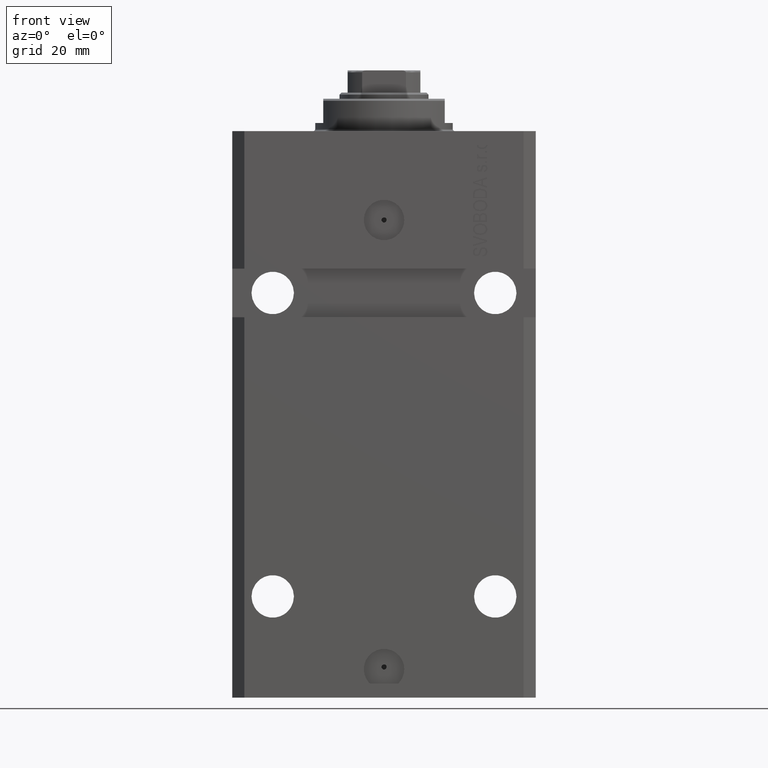
[diagram: clean part render]
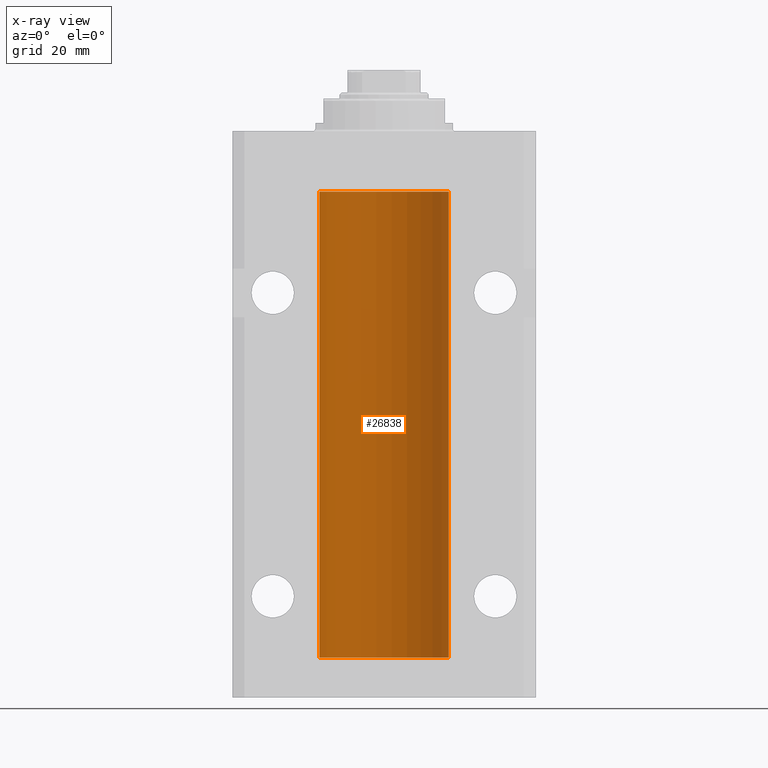
[diagram: x-ray — body ghosted, one internal face saturated and labeled with its STEP entity id]
A machine part, front view, then the same camera in x-ray: the body is ghosted and one INTERNAL B-rep face — a face not visible from any outside direction — is saturated and labeled: STEP entity #26838.
In plain terms, the highlighted cylindrical surface (partial cylindrical patch) has radius 16 mm, axis along (0, 0, 1).
Its self-contained STEP definition (entity closure, byte-faithful):
#919 = CARTESIAN_POINT ( 'NONE',  ( 16.00000000000000355, 0.08261762387943334673, -128.6250000000000000 ) ) ;
#1104 = EDGE_LOOP ( 'NONE', ( #15509, #25297, #29927, #26818, #11495, #1739, #27128, #18544, #9976, #4559 ) ) ;
#1739 = ORIENTED_EDGE ( 'NONE', *, *, #7526, .T. ) ;
#1904 = VERTEX_POINT ( 'NONE', #9863 ) ;
#2491 = VERTEX_POINT ( 'NONE', #39573 ) ;
#3247 = CARTESIAN_POINT ( 'NONE',  ( 15.98778830858104172, 0.6249999999996183053, -21.91847885046212951 ) ) ;
#4559 = ORIENTED_EDGE ( 'NONE', *, *, #31429, .T. ) ;
#6688 = CARTESIAN_POINT ( 'NONE',  ( 15.99707608081895494, 0.3151028052309814975, -22.54594170697728117 ) ) ;
#6913 = DIRECTION ( 'NONE',  ( 1.000000000000000000, 0.000000000000000000, 0.000000000000000000 ) ) ;
#7072 = VECTOR ( 'NONE', #34855, 1000.000000000000000 ) ;
#7145 = CARTESIAN_POINT ( 'NONE',  ( 16.00000000000000000, -7.378931128587136680E-16, -22.62500000000000000 ) ) ;
#7178 = LINE ( 'NONE', #7618, #9834 ) ;
#7295 = CARTESIAN_POINT ( 'NONE',  ( 15.98844460043492077, 0.6087869699337552509, -127.8365745496755608 ) ) ;
#7526 = EDGE_CURVE ( 'NONE', #21789, #40784, #7178, .T. ) ;
#7584 = CARTESIAN_POINT ( 'NONE',  ( 15.99070366873610638, 0.5574063959866681905, -22.32639436837549596 ) ) ;
#7618 = CARTESIAN_POINT ( 'NONE',  ( 16.00000000000000000, 0.000000000000000000, -130.0999999999999943 ) ) ;
#7623 = CARTESIAN_POINT ( 'NONE',  ( -16.00000000000000000, 1.959434878635765131E-15, -130.0999999999999943 ) ) ;
#7895 = CARTESIAN_POINT ( 'NONE',  ( 15.99707608081894783, 0.3151028052310348992, -128.5459417069773451 ) ) ;
#8246 = EDGE_CURVE ( 'NONE', #34758, #41691, #24337, .T. ) ;
#9547 = VERTEX_POINT ( 'NONE', #14457 ) ;
#9834 = VECTOR ( 'NONE', #38112, 1000.000000000000000 ) ;
#9863 = CARTESIAN_POINT ( 'NONE',  ( 16.00000000000013145, 3.665532680419208314E-13, -21.37499999999658229 ) ) ;
#9976 = ORIENTED_EDGE ( 'NONE', *, *, #14908, .T. ) ;
#10114 = DIRECTION ( 'NONE',  ( -0.000000000000000000, -0.000000000000000000, 1.000000000000000000 ) ) ;
#10239 = CARTESIAN_POINT ( 'NONE',  ( 15.99228275317787151, 0.5002975944204681724, -127.6164201457017668 ) ) ;
#10990 = CARTESIAN_POINT ( 'NONE',  ( 16.00000000000000000, 0.08261762387942135633, -22.62499999999996803 ) ) ;
#11495 = ORIENTED_EDGE ( 'NONE', *, *, #28149, .T. ) ;
#11834 = DIRECTION ( 'NONE',  ( 1.000000000000000000, 0.000000000000000000, 0.000000000000000000 ) ) ;
#12471 = CARTESIAN_POINT ( 'NONE',  ( 16.00000000000000000, 0.000000000000000000, -130.0999999999999943 ) ) ;
#13091 = CARTESIAN_POINT ( 'NONE',  ( 15.98778830858070954, 0.6250000000080528917, -127.9999999999991473 ) ) ;
#14321 = CARTESIAN_POINT ( 'NONE',  ( 15.98778830858070954, 0.6250000000079481977, -21.99999999999914735 ) ) ;
#14408 = DIRECTION ( 'NONE',  ( 1.000000000000000000, 0.000000000000000000, 0.000000000000000000 ) ) ;
#14457 = CARTESIAN_POINT ( 'NONE',  ( 16.00000000000000000, 0.000000000000000000, -15.00000000000000000 ) ) ;
#14908 = EDGE_CURVE ( 'NONE', #1904, #9547, #34054, .T. ) ;
#15509 = ORIENTED_EDGE ( 'NONE', *, *, #8246, .F. ) ;
#16508 = VERTEX_POINT ( 'NONE', #20115 ) ;
#17021 = CARTESIAN_POINT ( 'NONE',  ( 15.98844460043492077, 0.6087869699336542206, -21.83657454967558564 ) ) ;
#17343 = CARTESIAN_POINT ( 'NONE',  ( 0.000000000000000000, 0.000000000000000000, -130.0999999999999943 ) ) ;
#17483 = LINE ( 'NONE', #38239, #7072 ) ;
#17648 = VERTEX_POINT ( 'NONE', #30959 ) ;
#17921 = CARTESIAN_POINT ( 'NONE',  ( 16.00000000000013145, 3.665532680419208314E-13, -21.37499999999658229 ) ) ;
#18544 = ORIENTED_EDGE ( 'NONE', *, *, #35410, .T. ) ;
#20115 = CARTESIAN_POINT ( 'NONE',  ( 16.00000000000000000, 2.199125140786256469E-15, -128.6250000000000284 ) ) ;
#20457 = CARTESIAN_POINT ( 'NONE',  ( 15.99548458234361803, 0.3844468804815583396, -22.49947786696350960 ) ) ;
#21007 = CARTESIAN_POINT ( 'NONE',  ( 16.00000000000013145, 3.665533114689029904E-13, -127.3749999999965752 ) ) ;
#21014 = CARTESIAN_POINT ( 'NONE',  ( -16.00000000000000000, 1.959434878635765131E-15, -15.00000000000000000 ) ) ;
#21071 = CARTESIAN_POINT ( 'NONE',  ( 15.99999999999998934, 0.1631343969470183675, -127.3750000000001847 ) ) ;
#21359 = CARTESIAN_POINT ( 'NONE',  ( 15.98778830858101152, 0.6250000000001202372, -22.16311639173018477 ) ) ;
#21539 = DIRECTION ( 'NONE',  ( 0.000000000000000000, 0.000000000000000000, 1.000000000000000000 ) ) ;
#21668 = CARTESIAN_POINT ( 'NONE',  ( 15.99070366873610993, 0.5574063959867617823, -128.3263943683755315 ) ) ;
#21789 = VERTEX_POINT ( 'NONE', #21007 ) ;
#24009 = CARTESIAN_POINT ( 'NONE',  ( 15.99711856062700122, 0.3252985083513916242, -21.44140297987714661 ) ) ;
#24070 = CARTESIAN_POINT ( 'NONE',  ( 0.000000000000000000, 0.000000000000000000, -130.0999999999999943 ) ) ;
#24337 = LINE ( 'NONE', #7623, #27877 ) ;
#24968 = CARTESIAN_POINT ( 'NONE',  ( 16.00000000000000000, 0.000000000000000000, -130.0999999999999943 ) ) ;
#25120 = B_SPLINE_CURVE_WITH_KNOTS ( 'NONE', 3,
 ( #40931, #31217, #7295, #33951, #10239, #41607, #21071, #34841 ),
 .UNSPECIFIED., .F., .F.,
 ( 4, 2, 2, 4 ),
 ( 0.0009773326288700927462, 0.001221554802188709252, 0.001465776975507325757, 0.001954221322144558768 ),
 .UNSPECIFIED. ) ;
#25297 = ORIENTED_EDGE ( 'NONE', *, *, #38937, .F. ) ;
#25893 = CIRCLE ( 'NONE', #43915, 16.00000000000000000 ) ;
#26818 = ORIENTED_EDGE ( 'NONE', *, *, #36534, .T. ) ;
#26838 = ADVANCED_FACE ( 'NONE', ( #34261 ), #38103, .F. ) ;
#27128 = ORIENTED_EDGE ( 'NONE', *, *, #29920, .T. ) ;
#27238 = CARTESIAN_POINT ( 'NONE',  ( 15.99934183755191341, 0.1636877470526788836, -22.60872690654067796 ) ) ;
#27877 = VECTOR ( 'NONE', #28606, 1000.000000000000000 ) ;
#28149 = EDGE_CURVE ( 'NONE', #2491, #21789, #25120, .T. ) ;
#28425 = CARTESIAN_POINT ( 'NONE',  ( 15.99934183755190986, 0.1636877470527098033, -128.6087269065407384 ) ) ;
#28606 = DIRECTION ( 'NONE',  ( -0.000000000000000000, -0.000000000000000000, 1.000000000000000000 ) ) ;
#29500 = EDGE_CURVE ( 'NONE', #43968, #16508, #17483, .T. ) ;
#29585 = AXIS2_PLACEMENT_3D ( 'NONE', #24070, #31075, #6913 ) ;
#29920 = EDGE_CURVE ( 'NONE', #40784, #17648, #32545, .T. ) ;
#29927 = ORIENTED_EDGE ( 'NONE', *, *, #29500, .T. ) ;
#30780 = CARTESIAN_POINT ( 'NONE',  ( 15.99070695999104252, 0.5461439696926362330, -21.68526802364053552 ) ) ;
#30959 = CARTESIAN_POINT ( 'NONE',  ( 15.98778830858070954, 0.6250000000079481977, -21.99999999999914735 ) ) ;
#31075 = DIRECTION ( 'NONE',  ( 0.000000000000000000, 0.000000000000000000, 1.000000000000000000 ) ) ;
#31217 = CARTESIAN_POINT ( 'NONE',  ( 15.98778830858103817, 0.6249999999997200018, -127.9184788504620940 ) ) ;
#31429 = EDGE_CURVE ( 'NONE', #9547, #41691, #25893, .T. ) ;
#31818 = CARTESIAN_POINT ( 'NONE',  ( 16.00000000000000000, 2.199125140786256469E-15, -128.6250000000000284 ) ) ;
#32036 = CARTESIAN_POINT ( 'NONE',  ( 15.98778830858101152, 0.6250000000002303713, -128.1631163917302274 ) ) ;
#32131 = CARTESIAN_POINT ( 'NONE',  ( 0.000000000000000000, 0.000000000000000000, -15.00000000000000000 ) ) ;
#32545 = B_SPLINE_CURVE_WITH_KNOTS ( 'NONE', 3,
 ( #7145, #10990, #27238, #6688, #20457, #7584, #21359, #35134 ),
 .UNSPECIFIED., .F., .F.,
 ( 4, 2, 2, 4 ),
 ( 1.864948331951035013E-18, 0.0002443331572174913110, 0.0004886663144349807789, 0.0009773326288699671956 ),
 .UNSPECIFIED. ) ;
#32998 = CARTESIAN_POINT ( 'NONE',  ( 16.00000000000000000, -7.378931128587136680E-16, -22.62500000000000000 ) ) ;
#33951 = CARTESIAN_POINT ( 'NONE',  ( 15.99070695999103542, 0.5461439696927218312, -127.6852680236405035 ) ) ;
#34054 = LINE ( 'NONE', #12471, #38249 ) ;
#34261 = FACE_OUTER_BOUND ( 'NONE', #1104, .T. ) ;
#34758 = VERTEX_POINT ( 'NONE', #40647 ) ;
#34841 = CARTESIAN_POINT ( 'NONE',  ( 16.00000000000013145, 3.665533114689029904E-13, -127.3749999999965752 ) ) ;
#34855 = DIRECTION ( 'NONE',  ( -0.000000000000000000, -0.000000000000000000, 1.000000000000000000 ) ) ;
#35134 = CARTESIAN_POINT ( 'NONE',  ( 15.98778830858070954, 0.6250000000079481977, -21.99999999999914735 ) ) ;
#35410 = EDGE_CURVE ( 'NONE', #17648, #1904, #44335, .T. ) ;
#36534 = EDGE_CURVE ( 'NONE', #16508, #2491, #37857, .T. ) ;
#37288 = AXIS2_PLACEMENT_3D ( 'NONE', #17343, #10114, #14408 ) ;
#37779 = CARTESIAN_POINT ( 'NONE',  ( 15.99999999999999289, 0.1631343969470014366, -21.37500000000020606 ) ) ;
#37857 = B_SPLINE_CURVE_WITH_KNOTS ( 'NONE', 3,
 ( #31818, #919, #28425, #7895, #42197, #21668, #32036, #13091 ),
 .UNSPECIFIED., .F., .F.,
 ( 4, 2, 2, 4 ),
 ( 2.137109855960538111E-18, 0.0002443331572175100135, 0.0004886663144350179670, 0.0009773326288700927462 ),
 .UNSPECIFIED. ) ;
#38103 = CYLINDRICAL_SURFACE ( 'NONE', #37288, 16.00000000000000000 ) ;
#38112 = DIRECTION ( 'NONE',  ( -0.000000000000000000, -0.000000000000000000, 1.000000000000000000 ) ) ;
#38239 = CARTESIAN_POINT ( 'NONE',  ( 16.00000000000000000, 0.000000000000000000, -130.0999999999999943 ) ) ;
#38249 = VECTOR ( 'NONE', #39978, 1000.000000000000000 ) ;
#38937 = EDGE_CURVE ( 'NONE', #43968, #34758, #44090, .T. ) ;
#39573 = CARTESIAN_POINT ( 'NONE',  ( 15.98778830858070954, 0.6250000000080528917, -127.9999999999991473 ) ) ;
#39978 = DIRECTION ( 'NONE',  ( -0.000000000000000000, -0.000000000000000000, 1.000000000000000000 ) ) ;
#40647 = CARTESIAN_POINT ( 'NONE',  ( -16.00000000000000000, 1.959434878635765131E-15, -130.0999999999999943 ) ) ;
#40784 = VERTEX_POINT ( 'NONE', #32998 ) ;
#40931 = CARTESIAN_POINT ( 'NONE',  ( 15.98778830858070954, 0.6250000000080528917, -127.9999999999991473 ) ) ;
#41607 = CARTESIAN_POINT ( 'NONE',  ( 15.99711856062700477, 0.3252985083514177145, -127.4414029798771395 ) ) ;
#41691 = VERTEX_POINT ( 'NONE', #21014 ) ;
#42197 = CARTESIAN_POINT ( 'NONE',  ( 15.99548458234361092, 0.3844468804816240093, -128.4994778669635025 ) ) ;
#43915 = AXIS2_PLACEMENT_3D ( 'NONE', #32131, #21539, #11834 ) ;
#43968 = VERTEX_POINT ( 'NONE', #24968 ) ;
#44090 = CIRCLE ( 'NONE', #29585, 16.00000000000000000 ) ;
#44335 = B_SPLINE_CURVE_WITH_KNOTS ( 'NONE', 3,
 ( #14321, #3247, #17021, #30780, #44562, #24009, #37779, #17921 ),
 .UNSPECIFIED., .F., .F.,
 ( 4, 2, 2, 4 ),
 ( 0.0009773326288699671956, 0.001221554802188560499, 0.001465776975507153803, 0.001954221322144333254 ),
 .UNSPECIFIED. ) ;
#44562 = CARTESIAN_POINT ( 'NONE',  ( 15.99228275317787507, 0.5002975944204003378, -21.61642014570181303 ) ) ;